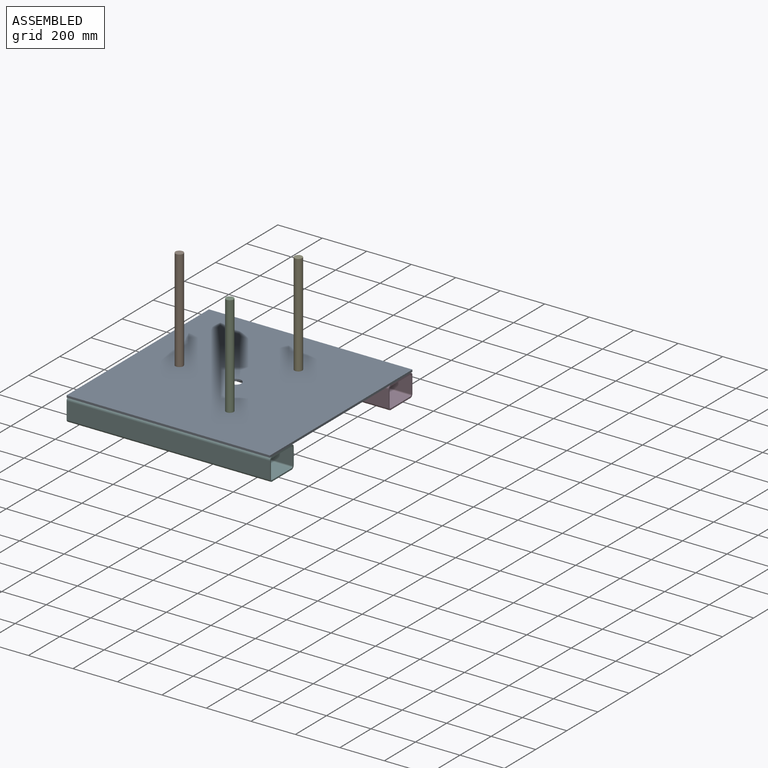
[diagram: assembled view]
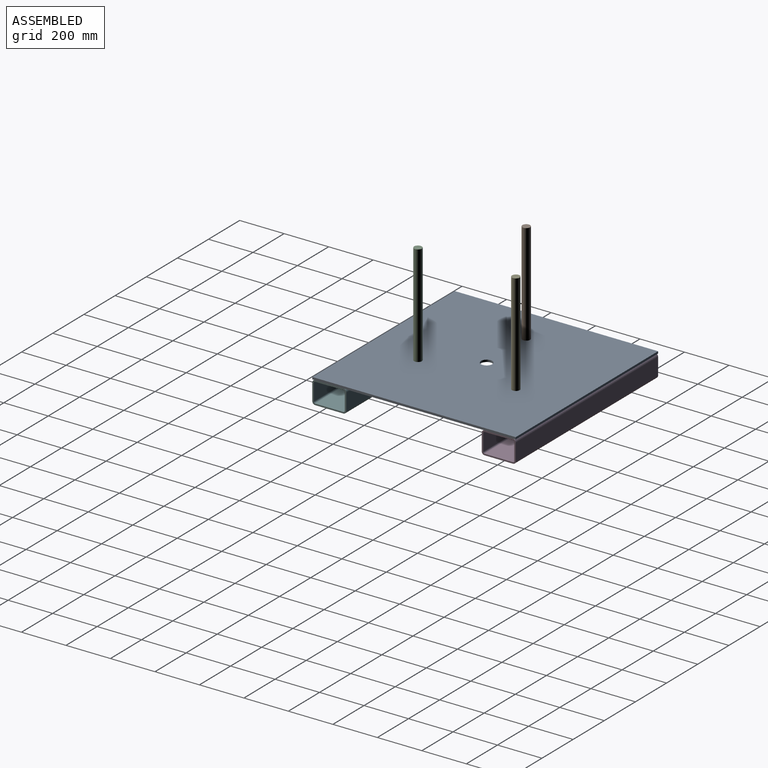
[diagram: assembled view, second angle]
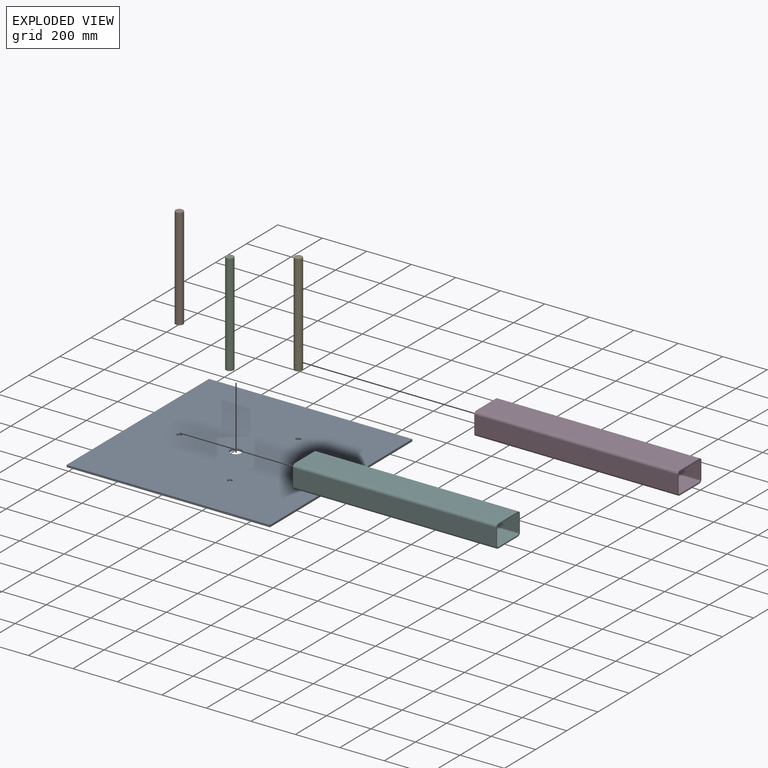
[diagram: exploded view]
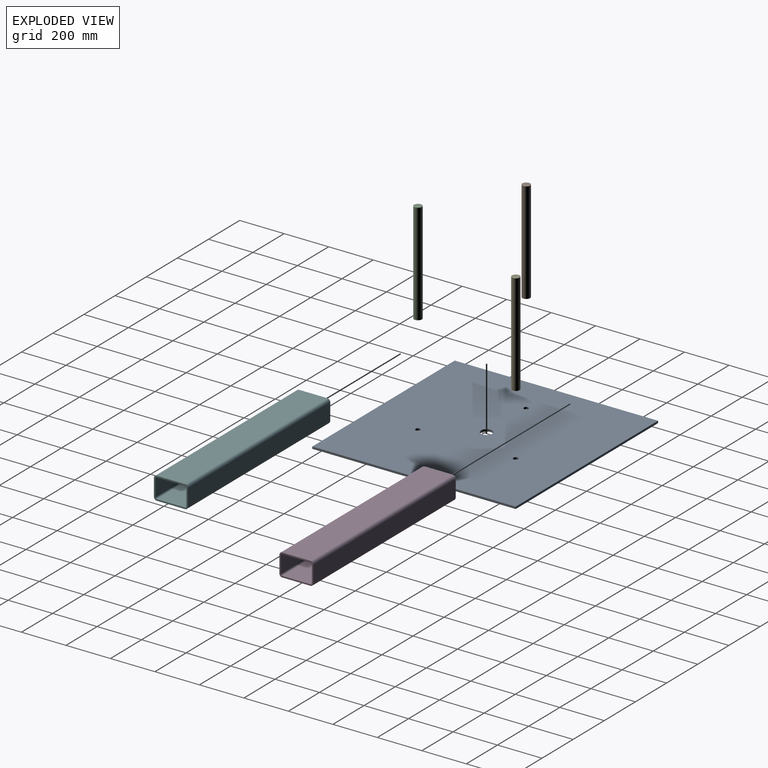
[diagram: exploded view, second angle]
ASSEMBLY  parts=6 mates=4
PART A: 10 faces, bbox 914.4x914.4x9.5 mm
  f0: plane 914.4x9.53mm, normal (0,1,0), area 8709.7mm2, adj f1,f3,f4,f5
  f1: plane 914.4x9.53mm, normal (-1,0,0), area 8709.7mm2, adj f0,f2,f4,f5
  f2: plane 914.4x9.53mm, normal (0,-1,0), area 8709.7mm2, adj f1,f3,f4,f5
  f3: plane 914.4x9.53mm, normal (1,0,0), area 8709.7mm2, adj f0,f2,f4,f5
  f4: plane 914.4x914.4mm, normal (0,0,1), area 832936.7mm2, adj f0,f1,f2,f3,f6,f7,f8,f9
  f5: plane 914.4x914.4mm, normal (0,0,-1), area 832936.7mm2, adj f0,f1,f2,f3,f6,f7,f8,f9
  f6: cylinder r=25.4mm len=50.8mm, axis (0,0,1), area 1520.1mm2, adj f4,f5
  f7: cylinder r=11.11mm len=22.23mm, axis (0,0,1), area 665.1mm2, adj f4,f5
  f8: cylinder r=11.11mm len=22.23mm, axis (0,0,1), area 665.1mm2, adj f4,f5
  f9: cylinder r=11.11mm len=22.23mm, axis (0,0,1), area 665.1mm2, adj f4,f5
PART B: 3 faces, bbox 34.9x34.9x457.2 mm
  f0: cylinder r=17.46mm len=457.2mm, axis (0,0,-1), area 50164mm2, adj f1,f2
  f1: plane 34.93x34.93mm, normal (0,0,1), area 958mm2, adj f0
  f2: plane 34.93x34.93mm, normal (0,0,-1), area 958mm2, adj f0
PART C: same geometry as B
PART D: 18 faces, bbox 914.4x152.4x101.6 mm
  f0: plane 152.4x101.6mm, normal (-1,0,0), area 2960.7mm2, adj f2,f3,f4,f5,f6,f7,f8,f9
  f1: plane 152.4x101.6mm, normal (1,0,0), area 2960.7mm2, adj f2,f3,f4,f5,f6,f7,f8,f9
  f2: plane 914.4x127mm, normal (0,0,1), area 116128.8mm2, adj f0,f1,f3,f9
  f3: cylinder r=12.7mm len=914.4mm, axis (1,0,0), area 18241.5mm2, adj f0,f1,f2,f4
  f4: plane 914.4x76.2mm, normal (0,-1,0), area 69677.3mm2, adj f0,f1,f3,f5
  f5: cylinder r=12.7mm len=914.4mm, axis (1,0,0), area 18241.5mm2, adj f0,f1,f4,f6
  f6: plane 914.4x127mm, normal (0,0,-1), area 116128.8mm2, adj f0,f1,f5,f7
  f7: cylinder r=12.7mm len=914.4mm, axis (1,0,0), area 18241.5mm2, adj f0,f1,f6,f8
  f8: plane 914.4x76.2mm, normal (0,1,0), area 69677.3mm2, adj f0,f1,f7,f9
  f9: cylinder r=12.7mm len=914.4mm, axis (1,0,0), area 18241.5mm2, adj f0,f1,f2,f8
  f10: plane 914.4x127mm, normal (0,0,-1), area 116128.8mm2, adj f0,f1,f11,f17
  f11: cylinder r=6.35mm len=914.4mm, axis (1,0,0), area 9120.7mm2, adj f0,f1,f10,f12
  f12: plane 914.4x76.2mm, normal (0,1,0), area 69677.3mm2, adj f0,f1,f11,f13
  f13: cylinder r=6.35mm len=914.4mm, axis (1,0,0), area 9120.7mm2, adj f0,f1,f12,f14
  f14: plane 914.4x127mm, normal (0,0,1), area 116128.8mm2, adj f0,f1,f13,f15
  f15: cylinder r=6.35mm len=914.4mm, axis (1,0,0), area 9120.7mm2, adj f0,f1,f14,f16
  f16: plane 914.4x76.2mm, normal (0,-1,0), area 69677.3mm2, adj f0,f1,f15,f17
  f17: cylinder r=6.35mm len=914.4mm, axis (1,0,0), area 9120.7mm2, adj f0,f1,f10,f16
PART E: same geometry as B
PART F: same geometry as D
PLACE A t=(443.05,441.22,101.6)mm
PLACE B t=(189.05,441.22,111.12)mm
PLACE C t=(570.05,221.25,111.12)mm
PLACE D t=(914.4,830.5,-15.76)mm
PLACE E t=(570.05,661.19,111.12)mm
PLACE F t=(914.4,68.5,-15.76)mm
MATE cylindrical A.f8 <-> C.f0  axis (0,0,1) through (570.05,221.25,111.12)mm
MATE cylindrical B.f0 <-> A.f7  axis (0,0,-1) through (189.05,441.22,111.12)mm
MATE fastened F.f1 <-> A.f3  axis (1,0,0) through (914.4,63.5,50.8)mm
MATE cylindrical A.f9 <-> E.f0  axis (0,0,1) through (570.05,661.19,111.12)mm
